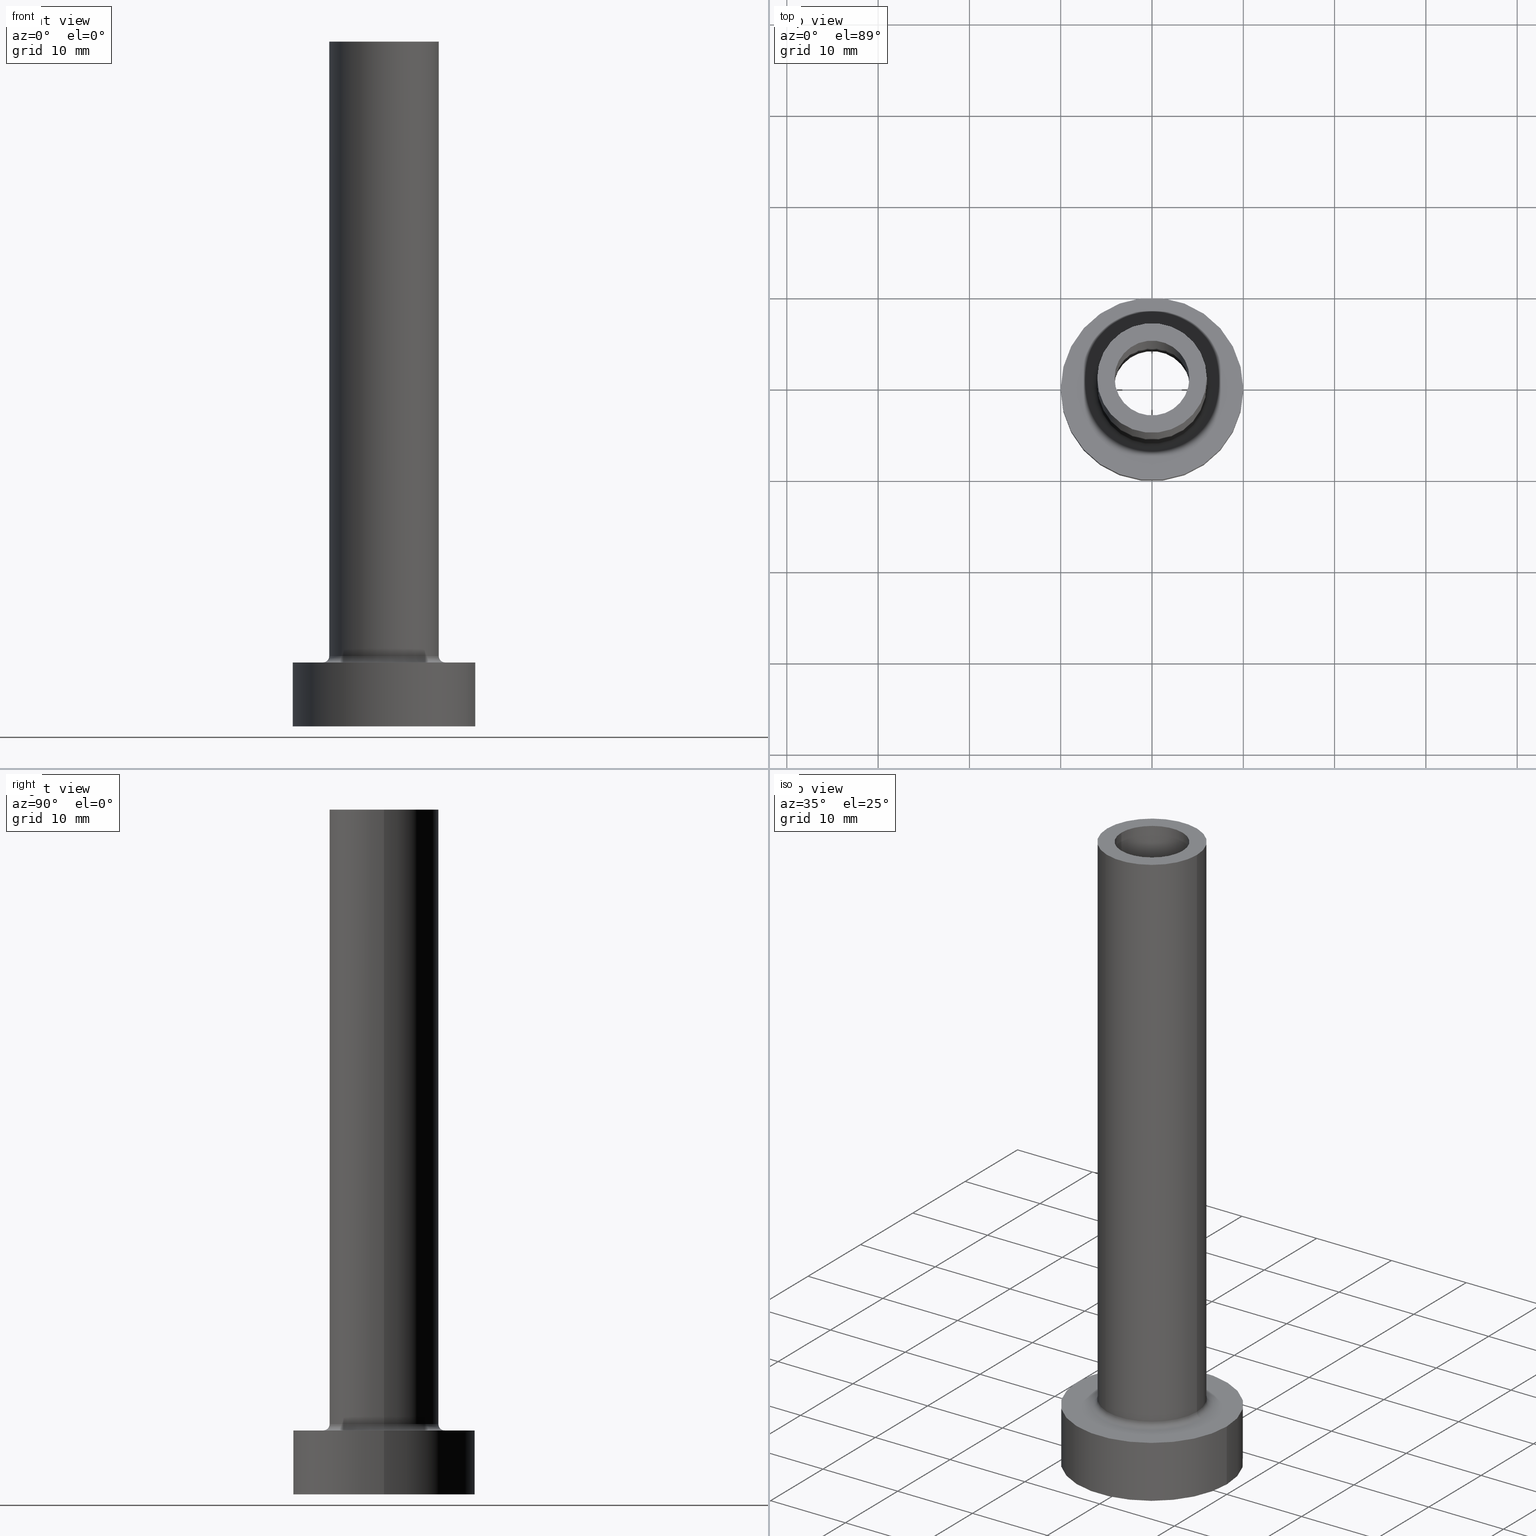
[diagram: canonical four-view strip — front | top / right | iso, engineering-drawing reading convention]
A machine part, canonical four-view strip (front | top / right | iso — engineering-drawing reading convention). The complete STEP part file that produces these views, byte-faithful:
ISO-10303-21;
HEADER;
FILE_DESCRIPTION (( 'STEP AP203' ),
    '1' );
FILE_NAME ('3b96.STEP',
    '2023-02-13T09:09:43',
    ( '' ),
    ( '' ),
    'SwSTEP 2.0',
    'SolidWorks 2019',
    '' );
FILE_SCHEMA (( 'CONFIG_CONTROL_DESIGN' ));
ENDSEC;

DATA;
#1 = FACE_OUTER_BOUND ( 'NONE', #108, .T. ) ;
#2 = ORIENTED_EDGE ( 'NONE', *, *, #327, .T. ) ;
#3 = CARTESIAN_POINT ( 'NONE',  ( 6.000000000000000888, 7.347880794884120722E-16, 75.00000000000001421 ) ) ;
#4 = DESIGN_CONTEXT ( 'detailed design', #452, 'design' ) ;
#5 = ORIENTED_EDGE ( 'NONE', *, *, #154, .F. ) ;
#6 = CARTESIAN_POINT ( 'NONE',  ( 0.000000000000000000, 0.000000000000000000, 7.699999999999998401 ) ) ;
#7 = APPROVAL ( #206, 'NEUR�EN�' ) ;
#8 = EDGE_LOOP ( 'NONE', ( #178, #136, #367, #390 ) ) ;
#9 = CIRCLE ( 'NONE', #89, 4.250000000000000000 ) ;
#10 = APPLICATION_CONTEXT ( 'configuration controlled 3d designs of mechanical parts and assemblies' ) ;
#11 = LINE ( 'NONE', #460, #188 ) ;
#12 = CARTESIAN_POINT ( 'NONE',  ( 0.000000000000000000, 0.000000000000000000, 7.699999999999998401 ) ) ;
#13 = DIRECTION ( 'NONE',  ( -1.000000000000000000, 0.000000000000000000, 0.000000000000000000 ) ) ;
#14 = CIRCLE ( 'NONE', #381, 10.00000000000000000 ) ;
#15 = AXIS2_PLACEMENT_3D ( 'NONE', #435, #43, #328 ) ;
#16 = DIRECTION ( 'NONE',  ( 0.000000000000000000, 0.000000000000000000, 1.000000000000000000 ) ) ;
#17 = VERTEX_POINT ( 'NONE', #142 ) ;
#18 = DIRECTION ( 'NONE',  ( 0.000000000000000000, 0.000000000000000000, 1.000000000000000000 ) ) ;
#19 = DIRECTION ( 'NONE',  ( 0.000000000000000000, 0.000000000000000000, 1.000000000000000000 ) ) ;
#20 = AXIS2_PLACEMENT_3D ( 'NONE', #252, #249, #383 ) ;
#21 = EDGE_CURVE ( 'NONE', #234, #129, #282, .T. ) ;
#22 = CARTESIAN_POINT ( 'NONE',  ( -4.099999999999999645, 0.000000000000000000, 75.00000000000001421 ) ) ;
#23 = CARTESIAN_POINT ( 'NONE',  ( -4.250000000000000000, 0.000000000000000000, 30.00000000000001421 ) ) ;
#24 = CALENDAR_DATE ( 2023, 13, 2 ) ;
#25 = ADVANCED_FACE ( 'NONE', ( #380 ), #67, .T. ) ;
#26 = DIRECTION ( 'NONE',  ( 0.000000000000000000, 0.000000000000000000, 1.000000000000000000 ) ) ;
#27 = CARTESIAN_POINT ( 'NONE',  ( 4.250000000000000000, 5.204748896376249713E-16, 0.000000000000000000 ) ) ;
#28 = ORIENTED_EDGE ( 'NONE', *, *, #340, .F. ) ;
#29 = APPROVAL_STATUS ( 'not_yet_approved' ) ;
#30 = PERSON_AND_ORGANIZATION ( #102, #420 ) ;
#31 = ADVANCED_BREP_SHAPE_REPRESENTATION ( '3b96', ( #274, #168 ), #42 ) ;
#32 = CC_DESIGN_PERSON_AND_ORGANIZATION_ASSIGNMENT ( #235, #402, ( #171 ) ) ;
#33 = CARTESIAN_POINT ( 'NONE',  ( 0.000000000000000000, 0.000000000000000000, 42.02081528017131973 ) ) ;
#34 = CIRCLE ( 'NONE', #15, 4.250000000000000000 ) ;
#35 = ORIENTED_EDGE ( 'NONE', *, *, #80, .T. ) ;
#36 = DIRECTION ( 'NONE',  ( 0.000000000000000000, 0.000000000000000000, 1.000000000000000000 ) ) ;
#37 = DIRECTION ( 'NONE',  ( -0.000000000000000000, -0.000000000000000000, -1.000000000000000000 ) ) ;
#38 = ORIENTED_EDGE ( 'NONE', *, *, #216, .T. ) ;
#39 = EDGE_CURVE ( 'NONE', #245, #116, #434, .T. ) ;
#40 = LINE ( 'NONE', #185, #113 ) ;
#41 = VERTEX_POINT ( 'NONE', #106 ) ;
#42 =( GEOMETRIC_REPRESENTATION_CONTEXT ( 3 ) GLOBAL_UNCERTAINTY_ASSIGNED_CONTEXT ( ( #184 ) ) GLOBAL_UNIT_ASSIGNED_CONTEXT ( ( #428, #194, #198 ) ) REPRESENTATION_CONTEXT ( 'NONE', 'WORKASPACE' ) );
#43 = DIRECTION ( 'NONE',  ( 0.000000000000000000, 0.000000000000000000, 1.000000000000000000 ) ) ;
#44 = CARTESIAN_POINT ( 'NONE',  ( 6.700000000000001066, 0.000000000000000000, 6.999999999999999112 ) ) ;
#45 = CIRCLE ( 'NONE', #20, 4.250000000000000000 ) ;
#46 = CARTESIAN_POINT ( 'NONE',  ( 0.000000000000000000, 0.000000000000000000, 75.00000000000001421 ) ) ;
#47 = DIRECTION ( 'NONE',  ( 1.000000000000000000, 0.000000000000000000, 0.000000000000000000 ) ) ;
#48 = PLANE ( 'NONE',  #73 ) ;
#49 = DIRECTION ( 'NONE',  ( 1.000000000000000000, 0.000000000000000000, 0.000000000000000000 ) ) ;
#50 = ORIENTED_EDGE ( 'NONE', *, *, #140, .F. ) ;
#51 = DIRECTION ( 'NONE',  ( -0.000000000000000000, -0.000000000000000000, -1.000000000000000000 ) ) ;
#52 = PERSON_AND_ORGANIZATION_ROLE ( 'design_supplier' ) ;
#53 = EDGE_CURVE ( 'NONE', #418, #63, #45, .T. ) ;
#54 = DIRECTION ( 'NONE',  ( 0.000000000000000000, 0.000000000000000000, 1.000000000000000000 ) ) ;
#55 = EDGE_LOOP ( 'NONE', ( #305, #83, #325, #397 ) ) ;
#56 = EDGE_LOOP ( 'NONE', ( #275, #223 ) ) ;
#57 = CIRCLE ( 'NONE', #159, 0.7000000000000000666 ) ;
#58 = PERSON_AND_ORGANIZATION ( #102, #420 ) ;
#59 = VERTEX_POINT ( 'NONE', #215 ) ;
#60 = ADVANCED_FACE ( 'NONE', ( #385 ), #71, .F. ) ;
#61 = VERTEX_POINT ( 'NONE', #217 ) ;
#62 = DIRECTION ( 'NONE',  ( -0.000000000000000000, -0.000000000000000000, -1.000000000000000000 ) ) ;
#63 = VERTEX_POINT ( 'NONE', #23 ) ;
#64 = CIRCLE ( 'NONE', #308, 6.000000000000000888 ) ;
#65 = CARTESIAN_POINT ( 'NONE',  ( 0.000000000000000000, 0.000000000000000000, 7.000000000000000000 ) ) ;
#66 = VERTEX_POINT ( 'NONE', #44 ) ;
#67 = CYLINDRICAL_SURFACE ( 'NONE', #370, 6.000000000000000888 ) ;
#68 = ADVANCED_FACE ( 'NONE', ( #227, #264 ), #329, .T. ) ;
#69 = CARTESIAN_POINT ( 'NONE',  ( 0.000000000000000000, 0.000000000000000000, 0.000000000000000000 ) ) ;
#70 = ORIENTED_EDGE ( 'NONE', *, *, #233, .F. ) ;
#71 = TOROIDAL_SURFACE ( 'NONE', #335, 6.700000000000001066, 0.6999999999999999556 ) ;
#72 = ORIENTED_EDGE ( 'NONE', *, *, #392, .F. ) ;
#73 = AXIS2_PLACEMENT_3D ( 'NONE', #423, #396, #361 ) ;
#74 = ADVANCED_FACE ( 'NONE', ( #79 ), #157, .F. ) ;
#75 = EDGE_LOOP ( 'NONE', ( #72, #288, #459, #50 ) ) ;
#76 = FACE_BOUND ( 'NONE', #56, .T. ) ;
#77 = DIRECTION ( 'NONE',  ( 0.000000000000000000, 0.000000000000000000, 1.000000000000000000 ) ) ;
#78 = ORIENTED_EDGE ( 'NONE', *, *, #427, .T. ) ;
#79 = FACE_OUTER_BOUND ( 'NONE', #55, .T. ) ;
#80 = EDGE_CURVE ( 'NONE', #41, #234, #348, .T. ) ;
#81 = LINE ( 'NONE', #296, #121 ) ;
#82 = DIRECTION ( 'NONE',  ( -1.000000000000000000, 0.000000000000000000, 0.000000000000000000 ) ) ;
#83 = ORIENTED_EDGE ( 'NONE', *, *, #162, .T. ) ;
#84 = DIRECTION ( 'NONE',  ( 0.000000000000000000, 0.000000000000000000, 1.000000000000000000 ) ) ;
#85 = VECTOR ( 'NONE', #186, 1000.000000000000000 ) ;
#86 = EDGE_CURVE ( 'NONE', #433, #59, #177, .T. ) ;
#87 = DIRECTION ( 'NONE',  ( 0.000000000000000000, 0.000000000000000000, 1.000000000000000000 ) ) ;
#88 = AXIS2_PLACEMENT_3D ( 'NONE', #172, #311, #453 ) ;
#89 = AXIS2_PLACEMENT_3D ( 'NONE', #69, #62, #151 ) ;
#90 = APPROVAL_DATE_TIME ( #368, #307 ) ;
#91 = CALENDAR_DATE ( 2023, 13, 2 ) ;
#92 = EDGE_LOOP ( 'NONE', ( #424, #166, #135, #387 ) ) ;
#93 = MECHANICAL_CONTEXT ( 'NONE', #10, 'mechanical' ) ;
#94 = AXIS2_PLACEMENT_3D ( 'NONE', #352, #37, #145 ) ;
#95 = CARTESIAN_POINT ( 'NONE',  ( 0.000000000000000000, 0.000000000000000000, 0.000000000000000000 ) ) ;
#96 = AXIS2_PLACEMENT_3D ( 'NONE', #46, #77, #120 ) ;
#97 = APPROVAL_STATUS ( 'not_yet_approved' ) ;
#98 = CC_DESIGN_APPROVAL ( #307, ( #372 ) ) ;
#99 = CARTESIAN_POINT ( 'NONE',  ( 0.000000000000000000, 0.000000000000000000, 0.000000000000000000 ) ) ;
#100 = EDGE_LOOP ( 'NONE', ( #416, #243 ) ) ;
#101 = CARTESIAN_POINT ( 'NONE',  ( 0.000000000000000000, 0.000000000000000000, 75.00000000000001421 ) ) ;
#102 = PERSON ( 'NEUR�EN�', 'NEUR�EN�', 'NEUR�EN�', ('NEUR�EN�'), ('NEUR�EN�'), ('NEUR�EN�') ) ;
#103 = EDGE_LOOP ( 'NONE', ( #164, #139, #430, #5 ) ) ;
#104 = CARTESIAN_POINT ( 'NONE',  ( 0.000000000000000000, 0.000000000000000000, 75.00000000000001421 ) ) ;
#105 = FACE_OUTER_BOUND ( 'NONE', #257, .T. ) ;
#106 = CARTESIAN_POINT ( 'NONE',  ( -6.000000000000000888, 0.000000000000000000, 75.00000000000001421 ) ) ;
#107 = FACE_BOUND ( 'NONE', #457, .T. ) ;
#108 = EDGE_LOOP ( 'NONE', ( #143, #220, #211, #2 ) ) ;
#109 = AXIS2_PLACEMENT_3D ( 'NONE', #153, #84, #47 ) ;
#110 = ADVANCED_FACE ( 'NONE', ( #364 ), #292, .T. ) ;
#111 = AXIS2_PLACEMENT_3D ( 'NONE', #95, #54, #236 ) ;
#112 = ORIENTED_EDGE ( 'NONE', *, *, #140, .T. ) ;
#113 = VECTOR ( 'NONE', #147, 1000.000000000000000 ) ;
#114 = EDGE_LOOP ( 'NONE', ( #280, #410, #176, #284 ) ) ;
#115 = CARTESIAN_POINT ( 'NONE',  ( 0.000000000000000000, 0.000000000000000000, 7.000000000000000000 ) ) ;
#116 = VERTEX_POINT ( 'NONE', #161 ) ;
#117 = ADVANCED_FACE ( 'NONE', ( #333 ), #259, .T. ) ;
#118 = LINE ( 'NONE', #334, #187 ) ;
#119 = CARTESIAN_POINT ( 'NONE',  ( 0.000000000000000000, 0.000000000000000000, 75.00000000000001421 ) ) ;
#120 = DIRECTION ( 'NONE',  ( 1.000000000000000000, 0.000000000000000000, 0.000000000000000000 ) ) ;
#121 = VECTOR ( 'NONE', #123, 1000.000000000000000 ) ;
#122 = ORIENTED_EDGE ( 'NONE', *, *, #377, .T. ) ;
#123 = DIRECTION ( 'NONE',  ( -0.000000000000000000, -0.000000000000000000, -1.000000000000000000 ) ) ;
#124 = CARTESIAN_POINT ( 'NONE',  ( 0.000000000000000000, 0.000000000000000000, 7.000000000000000000 ) ) ;
#125 = CARTESIAN_POINT ( 'NONE',  ( 4.250000000000000000, 5.204748896376249713E-16, 42.02081528017131973 ) ) ;
#126 = ORIENTED_EDGE ( 'NONE', *, *, #427, .F. ) ;
#127 = AXIS2_PLACEMENT_3D ( 'NONE', #124, #265, #444 ) ;
#128 = APPROVAL_DATE_TIME ( #240, #7 ) ;
#129 = VERTEX_POINT ( 'NONE', #200 ) ;
#130 = LINE ( 'NONE', #382, #366 ) ;
#131 = EDGE_CURVE ( 'NONE', #180, #174, #297, .T. ) ;
#132 = VERTEX_POINT ( 'NONE', #339 ) ;
#133 = COORDINATED_UNIVERSAL_TIME_OFFSET ( 1, 0, .AHEAD. ) ;
#134 = AXIS2_PLACEMENT_3D ( 'NONE', #115, #363, #429 ) ;
#135 = ORIENTED_EDGE ( 'NONE', *, *, #302, .T. ) ;
#136 = ORIENTED_EDGE ( 'NONE', *, *, #340, .T. ) ;
#137 = CIRCLE ( 'NONE', #458, 6.000000000000000888 ) ;
#138 = AXIS2_PLACEMENT_3D ( 'NONE', #65, #212, #144 ) ;
#139 = ORIENTED_EDGE ( 'NONE', *, *, #255, .T. ) ;
#140 = EDGE_CURVE ( 'NONE', #129, #66, #57, .T. ) ;
#141 = FACE_OUTER_BOUND ( 'NONE', #321, .T. ) ;
#142 = CARTESIAN_POINT ( 'NONE',  ( -6.000000000000000888, 0.000000000000000000, 7.699999999999998401 ) ) ;
#143 = ORIENTED_EDGE ( 'NONE', *, *, #162, .F. ) ;
#144 = DIRECTION ( 'NONE',  ( 1.000000000000000000, 0.000000000000000000, 0.000000000000000000 ) ) ;
#145 = DIRECTION ( 'NONE',  ( 1.000000000000000000, 0.000000000000000000, 0.000000000000000000 ) ) ;
#146 = CC_DESIGN_APPROVAL ( #7, ( #171 ) ) ;
#147 = DIRECTION ( 'NONE',  ( -0.000000000000000000, -0.000000000000000000, -1.000000000000000000 ) ) ;
#148 = CARTESIAN_POINT ( 'NONE',  ( 0.000000000000000000, 0.000000000000000000, 75.00000000000001421 ) ) ;
#149 = LINE ( 'NONE', #248, #439 ) ;
#150 = EDGE_CURVE ( 'NONE', #404, #66, #322, .T. ) ;
#151 = DIRECTION ( 'NONE',  ( 1.000000000000000000, 0.000000000000000000, 0.000000000000000000 ) ) ;
#152 = FACE_OUTER_BOUND ( 'NONE', #103, .T. ) ;
#153 = CARTESIAN_POINT ( 'NONE',  ( 0.000000000000000000, 0.000000000000000000, 75.00000000000001421 ) ) ;
#154 = EDGE_CURVE ( 'NONE', #174, #59, #118, .T. ) ;
#155 = CARTESIAN_POINT ( 'NONE',  ( 4.099999999999999645, 5.021051876504146399E-16, 30.00000000000001421 ) ) ;
#156 = DIRECTION ( 'NONE',  ( 0.000000000000000000, -1.000000000000000000, 0.000000000000000000 ) ) ;
#157 = CYLINDRICAL_SURFACE ( 'NONE', #315, 4.250000000000000000 ) ;
#158 = CARTESIAN_POINT ( 'NONE',  ( 0.000000000000000000, 0.000000000000000000, 7.000000000000000000 ) ) ;
#159 = AXIS2_PLACEMENT_3D ( 'NONE', #432, #156, #301 ) ;
#160 = CARTESIAN_POINT ( 'NONE',  ( -6.700000000000001066, 8.205133554287267548E-16, 6.999999999999999112 ) ) ;
#161 = CARTESIAN_POINT ( 'NONE',  ( -4.250000000000000000, 0.000000000000000000, 0.000000000000000000 ) ) ;
#162 = EDGE_CURVE ( 'NONE', #418, #245, #295, .T. ) ;
#163 = PERSON_AND_ORGANIZATION ( #102, #420 ) ;
#164 = ORIENTED_EDGE ( 'NONE', *, *, #190, .T. ) ;
#165 = COORDINATED_UNIVERSAL_TIME_OFFSET ( 1, 0, .AHEAD. ) ;
#166 = ORIENTED_EDGE ( 'NONE', *, *, #21, .T. ) ;
#167 = AXIS2_PLACEMENT_3D ( 'NONE', #293, #393, #226 ) ;
#168 = AXIS2_PLACEMENT_3D ( 'NONE', #273, #26, #443 ) ;
#169 = AXIS2_PLACEMENT_3D ( 'NONE', #219, #384, #179 ) ;
#170 = CALENDAR_DATE ( 2023, 13, 2 ) ;
#171 = PRODUCT_DEFINITION ( 'NEZN�M�', '', #360, #4 ) ;
#172 = CARTESIAN_POINT ( 'NONE',  ( 0.000000000000000000, 0.000000000000000000, 30.00000000000001421 ) ) ;
#173 = FACE_OUTER_BOUND ( 'NONE', #454, .T. ) ;
#174 = VERTEX_POINT ( 'NONE', #22 ) ;
#175 = ORIENTED_EDGE ( 'NONE', *, *, #318, .F. ) ;
#176 = ORIENTED_EDGE ( 'NONE', *, *, #448, .T. ) ;
#177 = CIRCLE ( 'NONE', #289, 4.099999999999999645 ) ;
#178 = ORIENTED_EDGE ( 'NONE', *, *, #207, .F. ) ;
#179 = DIRECTION ( 'NONE',  ( -1.000000000000000000, 1.224646799147353454E-16, 0.000000000000000000 ) ) ;
#180 = VERTEX_POINT ( 'NONE', #357 ) ;
#181 = APPROVAL ( #97, 'NEUR�EN�' ) ;
#182 = DIRECTION ( 'NONE',  ( 0.000000000000000000, 0.000000000000000000, -1.000000000000000000 ) ) ;
#183 = EDGE_LOOP ( 'NONE', ( #28, #126, #310, #228 ) ) ;
#184 = UNCERTAINTY_MEASURE_WITH_UNIT (LENGTH_MEASURE( 1.000000000000000082E-05 ), #428, 'distance_accuracy_value', 'NONE');
#185 = CARTESIAN_POINT ( 'NONE',  ( -10.00000000000000000, 0.000000000000000000, 7.000000000000000000 ) ) ;
#186 = DIRECTION ( 'NONE',  ( -0.000000000000000000, -0.000000000000000000, -1.000000000000000000 ) ) ;
#187 = VECTOR ( 'NONE', #401, 1000.000000000000000 ) ;
#188 = VECTOR ( 'NONE', #286, 1000.000000000000000 ) ;
#189 = DIRECTION ( 'NONE',  ( -0.000000000000000000, -0.000000000000000000, -1.000000000000000000 ) ) ;
#190 = EDGE_CURVE ( 'NONE', #174, #180, #412, .T. ) ;
#191 = DIRECTION ( 'NONE',  ( -0.000000000000000000, -0.000000000000000000, -1.000000000000000000 ) ) ;
#192 = CARTESIAN_POINT ( 'NONE',  ( 0.000000000000000000, 0.000000000000000000, 7.000000000000000000 ) ) ;
#193 = DIRECTION ( 'NONE',  ( 1.000000000000000000, 0.000000000000000000, 0.000000000000000000 ) ) ;
#194 =( NAMED_UNIT ( * ) PLANE_ANGLE_UNIT ( ) SI_UNIT ( $, .RADIAN. ) );
#195 = CIRCLE ( 'NONE', #88, 4.099999999999999645 ) ;
#196 = CARTESIAN_POINT ( 'NONE',  ( 0.000000000000000000, 0.000000000000000000, 0.000000000000000000 ) ) ;
#197 = AXIS2_PLACEMENT_3D ( 'NONE', #119, #256, #261 ) ;
#198 =( NAMED_UNIT ( * ) SI_UNIT ( $, .STERADIAN. ) SOLID_ANGLE_UNIT ( ) );
#199 = CARTESIAN_POINT ( 'NONE',  ( 0.000000000000000000, 0.000000000000000000, 42.02081528017131973 ) ) ;
#200 = CARTESIAN_POINT ( 'NONE',  ( 6.000000000000000888, 7.347880794884120722E-16, 7.699999999999998401 ) ) ;
#201 = EDGE_CURVE ( 'NONE', #369, #132, #246, .T. ) ;
#202 = CARTESIAN_POINT ( 'NONE',  ( 0.000000000000000000, 0.000000000000000000, 30.00000000000001421 ) ) ;
#203 = AXIS2_PLACEMENT_3D ( 'NONE', #99, #210, #445 ) ;
#204 = CIRCLE ( 'NONE', #169, 0.7000000000000000666 ) ;
#205 = DATE_TIME_ROLE ( 'classification_date' ) ;
#206 = APPROVAL_STATUS ( 'not_yet_approved' ) ;
#207 = EDGE_CURVE ( 'NONE', #61, #379, #14, .T. ) ;
#208 = COORDINATED_UNIVERSAL_TIME_OFFSET ( 1, 0, .AHEAD. ) ;
#209 = DATE_AND_TIME ( #371, #449 ) ;
#210 = DIRECTION ( 'NONE',  ( 0.000000000000000000, 0.000000000000000000, 1.000000000000000000 ) ) ;
#211 = ORIENTED_EDGE ( 'NONE', *, *, #349, .T. ) ;
#212 = DIRECTION ( 'NONE',  ( -0.000000000000000000, -0.000000000000000000, -1.000000000000000000 ) ) ;
#213 = DIRECTION ( 'NONE',  ( -1.000000000000000000, 0.000000000000000000, 0.000000000000000000 ) ) ;
#214 = FACE_OUTER_BOUND ( 'NONE', #8, .T. ) ;
#215 = CARTESIAN_POINT ( 'NONE',  ( -4.099999999999999645, 0.000000000000000000, 30.00000000000001421 ) ) ;
#216 = EDGE_CURVE ( 'NONE', #234, #41, #137, .T. ) ;
#217 = CARTESIAN_POINT ( 'NONE',  ( 10.00000000000000000, 1.224646799147353256E-15, 7.000000000000000000 ) ) ;
#218 = LOCAL_TIME ( 10, 9, 43.00000000000000000, #208 ) ;
#219 = CARTESIAN_POINT ( 'NONE',  ( -6.700000000000001066, 8.205133554287267548E-16, 7.699999999999998401 ) ) ;
#220 = ORIENTED_EDGE ( 'NONE', *, *, #53, .T. ) ;
#221 = DIRECTION ( 'NONE',  ( 0.000000000000000000, 0.000000000000000000, -1.000000000000000000 ) ) ;
#222 = PRODUCT_RELATED_PRODUCT_CATEGORY ( 'detail', '', ( #351 ) ) ;
#223 = ORIENTED_EDGE ( 'NONE', *, *, #86, .T. ) ;
#224 = DIRECTION ( 'NONE',  ( 0.000000000000000000, 0.000000000000000000, 1.000000000000000000 ) ) ;
#225 = APPROVAL_PERSON_ORGANIZATION ( #409, #7, #276 ) ;
#226 = DIRECTION ( 'NONE',  ( -1.000000000000000000, 0.000000000000000000, 0.000000000000000000 ) ) ;
#227 = FACE_BOUND ( 'NONE', #313, .T. ) ;
#228 = ORIENTED_EDGE ( 'NONE', *, *, #201, .T. ) ;
#229 = ADVANCED_FACE ( 'NONE', ( #450, #173 ), #304, .F. ) ;
#230 = PERSON_AND_ORGANIZATION_ROLE ( 'creator' ) ;
#231 = AXIS2_PLACEMENT_3D ( 'NONE', #12, #422, #354 ) ;
#232 = SHAPE_DEFINITION_REPRESENTATION ( #373, #31 ) ;
#233 = EDGE_CURVE ( 'NONE', #132, #369, #254, .T. ) ;
#234 = VERTEX_POINT ( 'NONE', #344 ) ;
#235 = PERSON_AND_ORGANIZATION ( #102, #420 ) ;
#236 = DIRECTION ( 'NONE',  ( 1.000000000000000000, 0.000000000000000000, 0.000000000000000000 ) ) ;
#237 = ORIENTED_EDGE ( 'NONE', *, *, #86, .F. ) ;
#238 = ORIENTED_EDGE ( 'NONE', *, *, #150, .T. ) ;
#239 = CC_DESIGN_PERSON_AND_ORGANIZATION_ASSIGNMENT ( #300, #242, ( #372 ) ) ;
#240 = DATE_AND_TIME ( #24, #247 ) ;
#241 = AXIS2_PLACEMENT_3D ( 'NONE', #192, #224, #391 ) ;
#242 = PERSON_AND_ORGANIZATION_ROLE ( 'classification_officer' ) ;
#243 = ORIENTED_EDGE ( 'NONE', *, *, #53, .F. ) ;
#244 = DIRECTION ( 'NONE',  ( 1.000000000000000000, 0.000000000000000000, -0.000000000000000000 ) ) ;
#245 = VERTEX_POINT ( 'NONE', #27 ) ;
#246 = CIRCLE ( 'NONE', #337, 10.00000000000000000 ) ;
#247 = LOCAL_TIME ( 10, 9, 43.00000000000000000, #133 ) ;
#248 = CARTESIAN_POINT ( 'NONE',  ( -4.250000000000000000, 0.000000000000000000, 42.02081528017131973 ) ) ;
#249 = DIRECTION ( 'NONE',  ( 0.000000000000000000, 0.000000000000000000, 1.000000000000000000 ) ) ;
#250 = EDGE_CURVE ( 'NONE', #59, #433, #195, .T. ) ;
#251 = DIRECTION ( 'NONE',  ( 0.000000000000000000, 0.000000000000000000, -1.000000000000000000 ) ) ;
#252 = CARTESIAN_POINT ( 'NONE',  ( 0.000000000000000000, 0.000000000000000000, 30.00000000000001421 ) ) ;
#253 = PLANE ( 'NONE',  #323 ) ;
#254 = CIRCLE ( 'NONE', #111, 10.00000000000000000 ) ;
#255 = EDGE_CURVE ( 'NONE', #180, #433, #130, .T. ) ;
#256 = DIRECTION ( 'NONE',  ( 0.000000000000000000, 0.000000000000000000, -1.000000000000000000 ) ) ;
#257 = EDGE_LOOP ( 'NONE', ( #451, #331, #314, #237 ) ) ;
#258 = CC_DESIGN_DATE_AND_TIME_ASSIGNMENT ( #374, #205, ( #372 ) ) ;
#259 = CYLINDRICAL_SURFACE ( 'NONE', #167, 10.00000000000000000 ) ;
#260 = DIRECTION ( 'NONE',  ( 1.000000000000000000, 0.000000000000000000, 0.000000000000000000 ) ) ;
#261 = DIRECTION ( 'NONE',  ( -1.000000000000000000, 0.000000000000000000, 0.000000000000000000 ) ) ;
#262 = DIRECTION ( 'NONE',  ( 0.000000000000000000, 0.000000000000000000, 1.000000000000000000 ) ) ;
#263 = ADVANCED_FACE ( 'NONE', ( #141 ), #447, .F. ) ;
#264 = FACE_OUTER_BOUND ( 'NONE', #269, .T. ) ;
#265 = DIRECTION ( 'NONE',  ( -0.000000000000000000, -0.000000000000000000, -1.000000000000000000 ) ) ;
#266 = COORDINATED_UNIVERSAL_TIME_OFFSET ( 1, 0, .AHEAD. ) ;
#267 = ADVANCED_FACE ( 'NONE', ( #214 ), #419, .T. ) ;
#268 = AXIS2_PLACEMENT_3D ( 'NONE', #33, #326, #279 ) ;
#269 = EDGE_LOOP ( 'NONE', ( #78, #406 ) ) ;
#270 = CC_DESIGN_SECURITY_CLASSIFICATION ( #372, ( #360 ) ) ;
#271 = DATE_TIME_ROLE ( 'creation_date' ) ;
#272 = CC_DESIGN_PERSON_AND_ORGANIZATION_ASSIGNMENT ( #365, #52, ( #360 ) ) ;
#273 = CARTESIAN_POINT ( 'NONE',  ( 0.000000000000000000, 0.000000000000000000, 0.000000000000000000 ) ) ;
#274 = MANIFOLD_SOLID_BREP ( 'Odebrat vysunut�m4', #287 ) ;
#275 = ORIENTED_EDGE ( 'NONE', *, *, #250, .T. ) ;
#276 = APPROVAL_ROLE ( '' ) ;
#277 = AXIS2_PLACEMENT_3D ( 'NONE', #358, #19, #436 ) ;
#278 = ADVANCED_FACE ( 'NONE', ( #1 ), #421, .F. ) ;
#279 = DIRECTION ( 'NONE',  ( -1.000000000000000000, 0.000000000000000000, 0.000000000000000000 ) ) ;
#280 = ORIENTED_EDGE ( 'NONE', *, *, #21, .F. ) ;
#281 = DIRECTION ( 'NONE',  ( -1.000000000000000000, 0.000000000000000000, 0.000000000000000000 ) ) ;
#282 = LINE ( 'NONE', #3, #85 ) ;
#283 = CARTESIAN_POINT ( 'NONE',  ( 0.000000000000000000, 0.000000000000000000, 7.699999999999998401 ) ) ;
#284 = ORIENTED_EDGE ( 'NONE', *, *, #392, .T. ) ;
#285 = CYLINDRICAL_SURFACE ( 'NONE', #309, 4.099999999999999645 ) ;
#286 = DIRECTION ( 'NONE',  ( -0.000000000000000000, -0.000000000000000000, -1.000000000000000000 ) ) ;
#287 = CLOSED_SHELL ( 'NONE', ( #415, #74, #60, #110, #267, #117, #68, #229, #25, #359, #263, #278, #442, #294 ) ) ;
#288 = ORIENTED_EDGE ( 'NONE', *, *, #318, .T. ) ;
#289 = AXIS2_PLACEMENT_3D ( 'NONE', #202, #16, #49 ) ;
#290 = AXIS2_PLACEMENT_3D ( 'NONE', #417, #189, #281 ) ;
#291 = APPROVAL_PERSON_ORGANIZATION ( #30, #181, #341 ) ;
#292 = CYLINDRICAL_SURFACE ( 'NONE', #336, 6.000000000000000888 ) ;
#293 = CARTESIAN_POINT ( 'NONE',  ( 0.000000000000000000, 0.000000000000000000, 7.000000000000000000 ) ) ;
#294 = ADVANCED_FACE ( 'NONE', ( #105 ), #285, .F. ) ;
#295 = LINE ( 'NONE', #125, #437 ) ;
#296 = CARTESIAN_POINT ( 'NONE',  ( -6.000000000000000888, 0.000000000000000000, 75.00000000000001421 ) ) ;
#297 = CIRCLE ( 'NONE', #96, 4.099999999999999645 ) ;
#298 = CC_DESIGN_APPROVAL ( #181, ( #360 ) ) ;
#299 = CARTESIAN_POINT ( 'NONE',  ( 0.000000000000000000, 0.000000000000000000, 75.00000000000001421 ) ) ;
#300 = PERSON_AND_ORGANIZATION ( #102, #420 ) ;
#301 = DIRECTION ( 'NONE',  ( 0.000000000000000000, 0.000000000000000000, -1.000000000000000000 ) ) ;
#302 = EDGE_CURVE ( 'NONE', #129, #17, #64, .T. ) ;
#303 = APPROVAL_ROLE ( '' ) ;
#304 = PLANE ( 'NONE',  #203 ) ;
#305 = ORIENTED_EDGE ( 'NONE', *, *, #407, .T. ) ;
#306 = DATE_AND_TIME ( #170, #338 ) ;
#307 = APPROVAL ( #29, 'NEUR�EN�' ) ;
#308 = AXIS2_PLACEMENT_3D ( 'NONE', #6, #36, #324 ) ;
#309 = AXIS2_PLACEMENT_3D ( 'NONE', #104, #376, #317 ) ;
#310 = ORIENTED_EDGE ( 'NONE', *, *, #386, .T. ) ;
#311 = DIRECTION ( 'NONE',  ( 0.000000000000000000, 0.000000000000000000, 1.000000000000000000 ) ) ;
#312 = PERSON_AND_ORGANIZATION_ROLE ( 'design_owner' ) ;
#313 = EDGE_LOOP ( 'NONE', ( #122, #238 ) ) ;
#314 = ORIENTED_EDGE ( 'NONE', *, *, #154, .T. ) ;
#315 = AXIS2_PLACEMENT_3D ( 'NONE', #199, #398, #13 ) ;
#316 = ORIENTED_EDGE ( 'NONE', *, *, #327, .F. ) ;
#317 = DIRECTION ( 'NONE',  ( -1.000000000000000000, 0.000000000000000000, 0.000000000000000000 ) ) ;
#318 = EDGE_CURVE ( 'NONE', #17, #404, #204, .T. ) ;
#319 = CARTESIAN_POINT ( 'NONE',  ( -10.00000000000000000, 0.000000000000000000, 7.000000000000000000 ) ) ;
#320 = DIRECTION ( 'NONE',  ( 0.000000000000000000, 0.000000000000000000, 1.000000000000000000 ) ) ;
#321 = EDGE_LOOP ( 'NONE', ( #175, #375, #112, #461 ) ) ;
#322 = CIRCLE ( 'NONE', #127, 6.700000000000001066 ) ;
#323 = AXIS2_PLACEMENT_3D ( 'NONE', #101, #320, #244 ) ;
#324 = DIRECTION ( 'NONE',  ( 1.000000000000000000, 0.000000000000000000, 0.000000000000000000 ) ) ;
#325 = ORIENTED_EDGE ( 'NONE', *, *, #39, .T. ) ;
#326 = DIRECTION ( 'NONE',  ( 0.000000000000000000, 0.000000000000000000, -1.000000000000000000 ) ) ;
#327 = EDGE_CURVE ( 'NONE', #116, #245, #9, .T. ) ;
#328 = DIRECTION ( 'NONE',  ( 1.000000000000000000, 0.000000000000000000, 0.000000000000000000 ) ) ;
#329 = PLANE ( 'NONE',  #134 ) ;
#330 = DIRECTION ( 'NONE',  ( 0.000000000000000000, 0.000000000000000000, 1.000000000000000000 ) ) ;
#331 = ORIENTED_EDGE ( 'NONE', *, *, #131, .T. ) ;
#332 = CC_DESIGN_PERSON_AND_ORGANIZATION_ASSIGNMENT ( #400, #312, ( #351 ) ) ;
#333 = FACE_OUTER_BOUND ( 'NONE', #183, .T. ) ;
#334 = CARTESIAN_POINT ( 'NONE',  ( -4.099999999999999645, 0.000000000000000000, 75.00000000000001421 ) ) ;
#335 = AXIS2_PLACEMENT_3D ( 'NONE', #355, #87, #193 ) ;
#336 = AXIS2_PLACEMENT_3D ( 'NONE', #362, #51, #82 ) ;
#337 = AXIS2_PLACEMENT_3D ( 'NONE', #196, #330, #260 ) ;
#338 = LOCAL_TIME ( 10, 9, 43.00000000000000000, #165 ) ;
#339 = CARTESIAN_POINT ( 'NONE',  ( 10.00000000000000000, 1.224646799147353256E-15, 0.000000000000000000 ) ) ;
#340 = EDGE_CURVE ( 'NONE', #61, #132, #11, .T. ) ;
#341 = APPROVAL_ROLE ( '' ) ;
#342 = CC_DESIGN_PERSON_AND_ORGANIZATION_ASSIGNMENT ( #58, #230, ( #360 ) ) ;
#343 = COORDINATED_UNIVERSAL_TIME_OFFSET ( 1, 0, .AHEAD. ) ;
#344 = CARTESIAN_POINT ( 'NONE',  ( 6.000000000000000888, 7.347880794884120722E-16, 75.00000000000001421 ) ) ;
#345 = ORIENTED_EDGE ( 'NONE', *, *, #190, .F. ) ;
#346 = CIRCLE ( 'NONE', #138, 6.700000000000001066 ) ;
#347 = APPROVAL_DATE_TIME ( #306, #181 ) ;
#348 = CIRCLE ( 'NONE', #109, 6.000000000000000888 ) ;
#349 = EDGE_CURVE ( 'NONE', #63, #116, #149, .T. ) ;
#350 = LOCAL_TIME ( 10, 9, 43.00000000000000000, #343 ) ;
#351 = PRODUCT ( '3b96', '3b96', '', ( #93 ) ) ;
#352 = CARTESIAN_POINT ( 'NONE',  ( 0.000000000000000000, 0.000000000000000000, 0.000000000000000000 ) ) ;
#353 = FACE_OUTER_BOUND ( 'NONE', #426, .T. ) ;
#354 = DIRECTION ( 'NONE',  ( 1.000000000000000000, 0.000000000000000000, 0.000000000000000000 ) ) ;
#355 = CARTESIAN_POINT ( 'NONE',  ( 0.000000000000000000, 0.000000000000000000, 7.699999999999998401 ) ) ;
#356 = APPROVAL_PERSON_ORGANIZATION ( #163, #307, #303 ) ;
#357 = CARTESIAN_POINT ( 'NONE',  ( 4.099999999999999645, 5.021051876504146399E-16, 75.00000000000001421 ) ) ;
#358 = CARTESIAN_POINT ( 'NONE',  ( 0.000000000000000000, 0.000000000000000000, 75.00000000000001421 ) ) ;
#359 = ADVANCED_FACE ( 'NONE', ( #107, #353 ), #253, .T. ) ;
#360 = PRODUCT_DEFINITION_FORMATION_WITH_SPECIFIED_SOURCE ( 'LIBOVOLN�', '', #351, .NOT_KNOWN. ) ;
#361 = DIRECTION ( 'NONE',  ( 1.000000000000000000, 0.000000000000000000, -0.000000000000000000 ) ) ;
#362 = CARTESIAN_POINT ( 'NONE',  ( 0.000000000000000000, 0.000000000000000000, 75.00000000000001421 ) ) ;
#363 = DIRECTION ( 'NONE',  ( 0.000000000000000000, 0.000000000000000000, 1.000000000000000000 ) ) ;
#364 = FACE_OUTER_BOUND ( 'NONE', #92, .T. ) ;
#365 = PERSON_AND_ORGANIZATION ( #102, #420 ) ;
#366 = VECTOR ( 'NONE', #251, 1000.000000000000000 ) ;
#367 = ORIENTED_EDGE ( 'NONE', *, *, #233, .T. ) ;
#368 = DATE_AND_TIME ( #91, #350 ) ;
#369 = VERTEX_POINT ( 'NONE', #378 ) ;
#370 = AXIS2_PLACEMENT_3D ( 'NONE', #148, #191, #213 ) ;
#371 = CALENDAR_DATE ( 2023, 13, 2 ) ;
#372 = SECURITY_CLASSIFICATION ( '', '', #446 ) ;
#373 = PRODUCT_DEFINITION_SHAPE ( 'NONE', 'NONE',  #171 ) ;
#374 = DATE_AND_TIME ( #405, #218 ) ;
#375 = ORIENTED_EDGE ( 'NONE', *, *, #302, .F. ) ;
#376 = DIRECTION ( 'NONE',  ( 0.000000000000000000, 0.000000000000000000, -1.000000000000000000 ) ) ;
#377 = EDGE_CURVE ( 'NONE', #66, #404, #346, .T. ) ;
#378 = CARTESIAN_POINT ( 'NONE',  ( -10.00000000000000000, 0.000000000000000000, 0.000000000000000000 ) ) ;
#379 = VERTEX_POINT ( 'NONE', #319 ) ;
#380 = FACE_OUTER_BOUND ( 'NONE', #114, .T. ) ;
#381 = AXIS2_PLACEMENT_3D ( 'NONE', #158, #262, #395 ) ;
#382 = CARTESIAN_POINT ( 'NONE',  ( 4.099999999999999645, 5.021051876504146399E-16, 75.00000000000001421 ) ) ;
#383 = DIRECTION ( 'NONE',  ( 1.000000000000000000, 0.000000000000000000, 0.000000000000000000 ) ) ;
#384 = DIRECTION ( 'NONE',  ( 1.224646799147353207E-16, 1.000000000000000000, -0.000000000000000000 ) ) ;
#385 = FACE_OUTER_BOUND ( 'NONE', #75, .T. ) ;
#386 = EDGE_CURVE ( 'NONE', #379, #369, #40, .T. ) ;
#387 = ORIENTED_EDGE ( 'NONE', *, *, #448, .F. ) ;
#388 = CIRCLE ( 'NONE', #241, 10.00000000000000000 ) ;
#389 = FACE_OUTER_BOUND ( 'NONE', #100, .T. ) ;
#390 = ORIENTED_EDGE ( 'NONE', *, *, #386, .F. ) ;
#391 = DIRECTION ( 'NONE',  ( 1.000000000000000000, 0.000000000000000000, 0.000000000000000000 ) ) ;
#392 = EDGE_CURVE ( 'NONE', #17, #129, #403, .T. ) ;
#393 = DIRECTION ( 'NONE',  ( -0.000000000000000000, -0.000000000000000000, -1.000000000000000000 ) ) ;
#394 = CYLINDRICAL_SURFACE ( 'NONE', #197, 4.099999999999999645 ) ;
#395 = DIRECTION ( 'NONE',  ( 1.000000000000000000, 0.000000000000000000, 0.000000000000000000 ) ) ;
#396 = DIRECTION ( 'NONE',  ( 0.000000000000000000, 0.000000000000000000, 1.000000000000000000 ) ) ;
#397 = ORIENTED_EDGE ( 'NONE', *, *, #349, .F. ) ;
#398 = DIRECTION ( 'NONE',  ( 0.000000000000000000, 0.000000000000000000, -1.000000000000000000 ) ) ;
#399 = CC_DESIGN_DATE_AND_TIME_ASSIGNMENT ( #209, #271, ( #171 ) ) ;
#400 = PERSON_AND_ORGANIZATION ( #102, #420 ) ;
#401 = DIRECTION ( 'NONE',  ( 0.000000000000000000, 0.000000000000000000, -1.000000000000000000 ) ) ;
#402 = PERSON_AND_ORGANIZATION_ROLE ( 'creator' ) ;
#403 = CIRCLE ( 'NONE', #425, 6.000000000000000888 ) ;
#404 = VERTEX_POINT ( 'NONE', #160 ) ;
#405 = CALENDAR_DATE ( 2023, 13, 2 ) ;
#406 = ORIENTED_EDGE ( 'NONE', *, *, #207, .T. ) ;
#407 = EDGE_CURVE ( 'NONE', #63, #418, #34, .T. ) ;
#408 = ORIENTED_EDGE ( 'NONE', *, *, #201, .F. ) ;
#409 = PERSON_AND_ORGANIZATION ( #102, #420 ) ;
#410 = ORIENTED_EDGE ( 'NONE', *, *, #80, .F. ) ;
#411 = APPLICATION_PROTOCOL_DEFINITION ( 'international standard', 'config_control_design', 1994, #10 ) ;
#412 = CIRCLE ( 'NONE', #277, 4.099999999999999645 ) ;
#413 = DIRECTION ( 'NONE',  ( 1.000000000000000000, 0.000000000000000000, 0.000000000000000000 ) ) ;
#414 = EDGE_LOOP ( 'NONE', ( #316, #438 ) ) ;
#415 = ADVANCED_FACE ( 'NONE', ( #152 ), #394, .F. ) ;
#416 = ORIENTED_EDGE ( 'NONE', *, *, #407, .F. ) ;
#417 = CARTESIAN_POINT ( 'NONE',  ( 0.000000000000000000, 0.000000000000000000, 7.000000000000000000 ) ) ;
#418 = VERTEX_POINT ( 'NONE', #440 ) ;
#419 = CYLINDRICAL_SURFACE ( 'NONE', #290, 10.00000000000000000 ) ;
#420 = ORGANIZATION ( 'NEUR�EN�', 'NEUR�EN�', '' ) ;
#421 = CYLINDRICAL_SURFACE ( 'NONE', #268, 4.250000000000000000 ) ;
#422 = DIRECTION ( 'NONE',  ( 0.000000000000000000, 0.000000000000000000, 1.000000000000000000 ) ) ;
#423 = CARTESIAN_POINT ( 'NONE',  ( 0.000000000000000000, 0.000000000000000000, 30.00000000000001421 ) ) ;
#424 = ORIENTED_EDGE ( 'NONE', *, *, #216, .F. ) ;
#425 = AXIS2_PLACEMENT_3D ( 'NONE', #283, #18, #431 ) ;
#426 = EDGE_LOOP ( 'NONE', ( #35, #38 ) ) ;
#427 = EDGE_CURVE ( 'NONE', #379, #61, #388, .T. ) ;
#428 =( LENGTH_UNIT ( ) NAMED_UNIT ( * ) SI_UNIT ( .MILLI., .METRE. ) );
#429 = DIRECTION ( 'NONE',  ( 1.000000000000000000, 0.000000000000000000, -0.000000000000000000 ) ) ;
#430 = ORIENTED_EDGE ( 'NONE', *, *, #250, .F. ) ;
#431 = DIRECTION ( 'NONE',  ( 1.000000000000000000, 0.000000000000000000, 0.000000000000000000 ) ) ;
#432 = CARTESIAN_POINT ( 'NONE',  ( 6.700000000000001066, 0.000000000000000000, 7.699999999999998401 ) ) ;
#433 = VERTEX_POINT ( 'NONE', #155 ) ;
#434 = CIRCLE ( 'NONE', #94, 4.250000000000000000 ) ;
#435 = CARTESIAN_POINT ( 'NONE',  ( 0.000000000000000000, 0.000000000000000000, 30.00000000000001421 ) ) ;
#436 = DIRECTION ( 'NONE',  ( 1.000000000000000000, 0.000000000000000000, 0.000000000000000000 ) ) ;
#437 = VECTOR ( 'NONE', #221, 1000.000000000000000 ) ;
#438 = ORIENTED_EDGE ( 'NONE', *, *, #39, .F. ) ;
#439 = VECTOR ( 'NONE', #182, 1000.000000000000000 ) ;
#440 = CARTESIAN_POINT ( 'NONE',  ( 4.250000000000000000, 5.204748896376249713E-16, 30.00000000000001421 ) ) ;
#441 = DIRECTION ( 'NONE',  ( 0.000000000000000000, 0.000000000000000000, 1.000000000000000000 ) ) ;
#442 = ADVANCED_FACE ( 'NONE', ( #76, #389 ), #48, .F. ) ;
#443 = DIRECTION ( 'NONE',  ( 1.000000000000000000, 0.000000000000000000, 0.000000000000000000 ) ) ;
#444 = DIRECTION ( 'NONE',  ( 1.000000000000000000, 0.000000000000000000, 0.000000000000000000 ) ) ;
#445 = DIRECTION ( 'NONE',  ( 1.000000000000000000, 0.000000000000000000, -0.000000000000000000 ) ) ;
#446 = SECURITY_CLASSIFICATION_LEVEL ( 'unclassified' ) ;
#447 = TOROIDAL_SURFACE ( 'NONE', #231, 6.700000000000001066, 0.6999999999999999556 ) ;
#448 = EDGE_CURVE ( 'NONE', #41, #17, #81, .T. ) ;
#449 = LOCAL_TIME ( 10, 9, 43.00000000000000000, #266 ) ;
#450 = FACE_BOUND ( 'NONE', #414, .T. ) ;
#451 = ORIENTED_EDGE ( 'NONE', *, *, #255, .F. ) ;
#452 = APPLICATION_CONTEXT ( 'configuration controlled 3d designs of mechanical parts and assemblies' ) ;
#453 = DIRECTION ( 'NONE',  ( 1.000000000000000000, 0.000000000000000000, 0.000000000000000000 ) ) ;
#454 = EDGE_LOOP ( 'NONE', ( #408, #70 ) ) ;
#455 = APPLICATION_PROTOCOL_DEFINITION ( 'international standard', 'config_control_design', 1994, #452 ) ;
#456 = ORIENTED_EDGE ( 'NONE', *, *, #131, .F. ) ;
#457 = EDGE_LOOP ( 'NONE', ( #345, #456 ) ) ;
#458 = AXIS2_PLACEMENT_3D ( 'NONE', #299, #441, #413 ) ;
#459 = ORIENTED_EDGE ( 'NONE', *, *, #377, .F. ) ;
#460 = CARTESIAN_POINT ( 'NONE',  ( 10.00000000000000000, 1.224646799147353256E-15, 7.000000000000000000 ) ) ;
#461 = ORIENTED_EDGE ( 'NONE', *, *, #150, .F. ) ;
ENDSEC;
END-ISO-10303-21;
